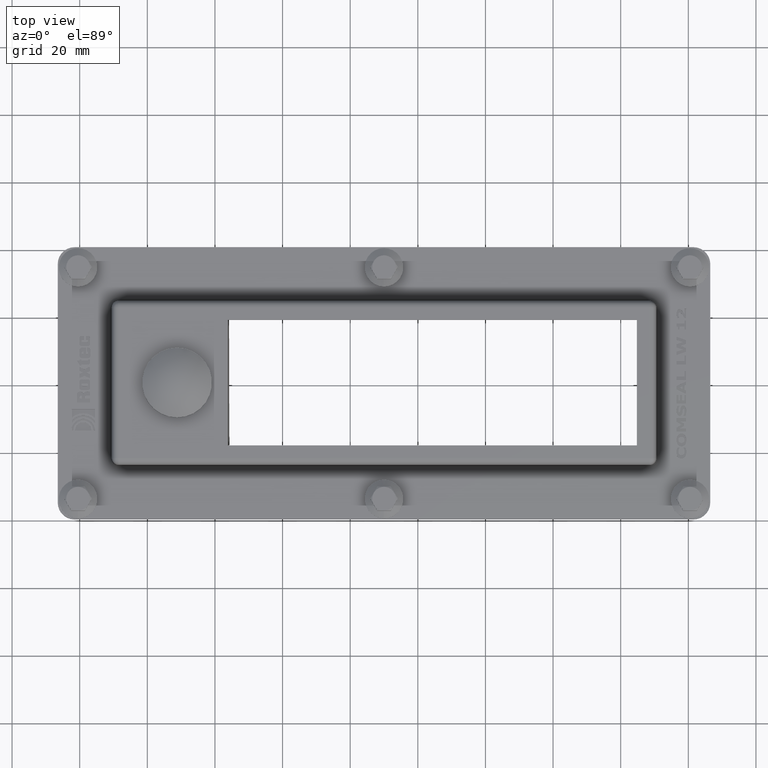
[diagram: clean part render]
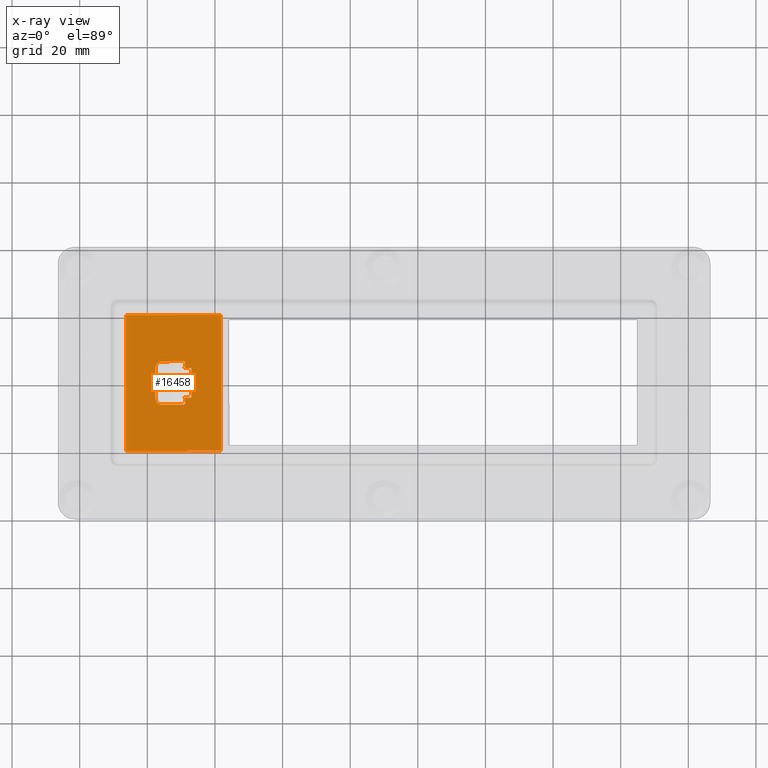
[diagram: x-ray — body ghosted, one internal face saturated and labeled with its STEP entity id]
A machine part, top view, then the same camera in x-ray: the body is ghosted and one INTERNAL B-rep face — a face not visible from any outside direction — is saturated and labeled: STEP entity #16458.
In plain terms, the highlighted planar face has unit normal (0.226, 0, -0.9741).
Its self-contained STEP definition (entity closure, byte-faithful):
#720=CARTESIAN_POINT('',(-78.16897413582565,20.079407966922172,19.547910793203318));
#721=VERTEX_POINT('',#720);
#728=CARTESIAN_POINT('',(-106.38655071872007,20.136550718720137,12.999999999999998));
#729=VERTEX_POINT('',#728);
#730=CARTESIAN_POINT('',(-78.168974135825636,20.079407966922172,19.547910793203318));
#731=DIRECTION('',(-0.97411505723463,0.001972657530483,-0.226044163585441));
#732=VECTOR('',#731,28.967395969630118);
#733=LINE('',#730,#732);
#734=EDGE_CURVE('',#721,#729,#733,.T.);
#16297=CARTESIAN_POINT('',(-78.16897413582565,-20.079407966922169,19.547910793203318));
#16298=VERTEX_POINT('',#16297);
#16305=CARTESIAN_POINT('',(-78.16897413582565,-20.079407966922165,19.547910793203318));
#16306=DIRECTION('',(0.0,1.0,0.0));
#16307=VECTOR('',#16306,40.158815933844338);
#16308=LINE('',#16305,#16307);
#16309=EDGE_CURVE('',#16298,#721,#16308,.T.);
#16315=CARTESIAN_POINT('',(-106.38655071872007,1.327558E-014,12.999999999999998));
#16316=DIRECTION('',(0.226044603398337,0.0,-0.974116952564983));
#16317=DIRECTION('',(-0.974116952564983,0.0,-0.226044603398337));
#16318=AXIS2_PLACEMENT_3D('',#16315,#16316,#16317);
#16319=PLANE('',#16318);
#16320=ORIENTED_EDGE('',*,*,#16309,.F.);
#16321=CARTESIAN_POINT('',(-106.38655071872007,-20.136550718720137,12.999999999999998));
#16322=VERTEX_POINT('',#16321);
#16323=CARTESIAN_POINT('',(-106.38655071872007,-20.136550718720137,13.0));
#16324=DIRECTION('',(0.97411505723463,0.001972657530483,0.226044163585441));
#16325=VECTOR('',#16324,28.967395969630136);
#16326=LINE('',#16323,#16325);
#16327=EDGE_CURVE('',#16322,#16298,#16326,.T.);
#16328=ORIENTED_EDGE('',*,*,#16327,.F.);
#16329=CARTESIAN_POINT('',(-106.38655071872009,20.136550718720141,12.999999999999998));
#16330=DIRECTION('',(0.0,-1.0,0.0));
#16331=VECTOR('',#16330,40.273101437440275);
#16332=LINE('',#16329,#16331);
#16333=EDGE_CURVE('',#729,#16322,#16332,.T.);
#16334=ORIENTED_EDGE('',*,*,#16333,.F.);
#16335=ORIENTED_EDGE('',*,*,#734,.F.);
#16336=EDGE_LOOP('',(#16320,#16328,#16334,#16335));
#16337=FACE_OUTER_BOUND('',#16336,.T.);
#16338=CARTESIAN_POINT('',(-86.920740230695685,4.339122054348793,17.517056601885933));
#16339=VERTEX_POINT('',#16338);
#16340=CARTESIAN_POINT('',(-89.320740230695677,4.343982237997529,16.960134718196802));
#16341=VERTEX_POINT('',#16340);
#16342=CARTESIAN_POINT('',(-86.920740230695685,4.339122054348795,17.517056601885926));
#16343=DIRECTION('',(-0.97411505723463,0.001972657530483,-0.226044163585441));
#16344=VECTOR('',#16343,2.463774666221915);
#16345=LINE('',#16342,#16344);
#16346=EDGE_CURVE('',#16339,#16341,#16345,.T.);
#16347=ORIENTED_EDGE('',*,*,#16346,.T.);
#16348=CARTESIAN_POINT('',(-88.820740230695662,4.842988738930244,17.076160110632038));
#16349=VERTEX_POINT('',#16348);
#16350=CARTESIAN_POINT('',(-89.320740230695677,4.844001277190397,16.960134718196802));
#16351=DIRECTION('',(-0.226044603398337,-1.734723E-018,0.974116952564983));
#16352=DIRECTION('',(0.973391808225825,-0.038578100404249,0.225876333085291));
#16353=AXIS2_PLACEMENT_3D('',#16350,#16351,#16352);
#16354=ELLIPSE('',#16353,0.513304935178728,0.5);
#16355=EDGE_CURVE('',#16349,#16341,#16354,.F.);
#16356=ORIENTED_EDGE('',*,*,#16355,.F.);
#16357=CARTESIAN_POINT('',(-88.820740230695662,5.915444384361985,17.076160110632038));
#16358=VERTEX_POINT('',#16357);
#16359=CARTESIAN_POINT('',(-88.820740230695662,4.842988738930244,17.076160110632038));
#16360=DIRECTION('',(0.0,1.0,0.0));
#16361=VECTOR('',#16360,1.072455645431741);
#16362=LINE('',#16359,#16361);
#16363=EDGE_CURVE('',#16349,#16358,#16362,.T.);
#16364=ORIENTED_EDGE('',*,*,#16363,.T.);
#16365=CARTESIAN_POINT('',(-89.320740230695677,6.41349531762566,16.960134718196798));
#16366=VERTEX_POINT('',#16365);
#16367=CARTESIAN_POINT('',(-89.320740230695677,5.913419153603706,16.960134718196798));
#16368=DIRECTION('',(-0.226044603398337,0.0,0.974116952564982));
#16369=DIRECTION('',(0.971225614880206,0.076990360276182,0.225373666219259));
#16370=AXIS2_PLACEMENT_3D('',#16367,#16368,#16369);
#16371=ELLIPSE('',#16370,0.513363577859091,0.5);
#16372=EDGE_CURVE('',#16366,#16358,#16371,.F.);
#16373=ORIENTED_EDGE('',*,*,#16372,.F.);
#16374=CARTESIAN_POINT('',(-95.609069522209836,6.38802468182694,15.500922970576955));
#16375=VERTEX_POINT('',#16374);
#16376=CARTESIAN_POINT('',(-89.320740230695677,6.41349531762566,16.960134718196798));
#16377=DIRECTION('',(-0.974109370155081,-0.003945592516732,-0.226042843894168));
#16378=VECTOR('',#16377,6.455465355510391);
#16379=LINE('',#16376,#16378);
#16380=EDGE_CURVE('',#16366,#16375,#16379,.T.);
#16381=ORIENTED_EDGE('',*,*,#16380,.T.);
#16382=CARTESIAN_POINT('',(-97.600697898429459,4.380262277420995,15.038764042704889));
#16383=VERTEX_POINT('',#16382);
#16384=CARTESIAN_POINT('',(-95.608462714286944,4.387722483591263,15.50106378083173));
#16385=DIRECTION('',(-0.226044603398337,3.469447E-018,0.974116952564982));
#16386=DIRECTION('',(-0.970738670426935,-0.083210961532665,-0.225260670376689));
#16387=AXIS2_PLACEMENT_3D('',#16384,#16385,#16386);
#16388=ELLIPSE('',#16387,2.045481869253651,2.0);
#16389=EDGE_CURVE('',#16383,#16375,#16388,.F.);
#16390=ORIENTED_EDGE('',*,*,#16389,.F.);
#16391=CARTESIAN_POINT('',(-97.600697898429459,-4.380262277420997,15.038764042704889));
#16392=VERTEX_POINT('',#16391);
#16393=CARTESIAN_POINT('',(-97.600697898429459,4.380262277420994,15.038764042704889));
#16394=DIRECTION('',(0.0,-1.0,0.0));
#16395=VECTOR('',#16394,8.760524554841991);
#16396=LINE('',#16393,#16395);
#16397=EDGE_CURVE('',#16383,#16392,#16396,.T.);
#16398=ORIENTED_EDGE('',*,*,#16397,.T.);
#16399=CARTESIAN_POINT('',(-95.609069522209836,-6.388024681826941,15.500922970576955));
#16400=VERTEX_POINT('',#16399);
#16401=CARTESIAN_POINT('',(-95.608462714286944,-4.387722483591265,15.501063780831728));
#16402=DIRECTION('',(-0.226044603398337,-3.469447E-018,0.974116952564982));
#16403=DIRECTION('',(-0.970738670426935,0.083210961532665,-0.225260670376689));
#16404=AXIS2_PLACEMENT_3D('',#16401,#16402,#16403);
#16405=ELLIPSE('',#16404,2.045481869253651,2.0);
#16406=EDGE_CURVE('',#16400,#16392,#16405,.F.);
#16407=ORIENTED_EDGE('',*,*,#16406,.F.);
#16408=CARTESIAN_POINT('',(-89.320740230695677,-6.413495317625664,16.960134718196798));
#16409=VERTEX_POINT('',#16408);
#16410=CARTESIAN_POINT('',(-95.60906952220985,-6.38802468182694,15.500922970576955));
#16411=DIRECTION('',(0.974109370155081,-0.003945592516732,0.226042843894168));
#16412=VECTOR('',#16411,6.455465355510392);
#16413=LINE('',#16410,#16412);
#16414=EDGE_CURVE('',#16400,#16409,#16413,.T.);
#16415=ORIENTED_EDGE('',*,*,#16414,.T.);
#16416=CARTESIAN_POINT('',(-88.820740230695662,-5.91544438436199,17.076160110632038));
#16417=VERTEX_POINT('',#16416);
#16418=CARTESIAN_POINT('',(-89.320740230695677,-5.91341915360371,16.960134718196802));
#16419=DIRECTION('',(-0.226044603398337,0.0,0.974116952564983));
#16420=DIRECTION('',(0.971225614880206,-0.076990360276179,0.225373666219259));
#16421=AXIS2_PLACEMENT_3D('',#16418,#16419,#16420);
#16422=ELLIPSE('',#16421,0.513363577859091,0.5);
#16423=EDGE_CURVE('',#16417,#16409,#16422,.F.);
#16424=ORIENTED_EDGE('',*,*,#16423,.F.);
#16425=CARTESIAN_POINT('',(-88.820740230695662,-4.842988738930249,17.076160110632038));
#16426=VERTEX_POINT('',#16425);
#16427=CARTESIAN_POINT('',(-88.820740230695662,-5.915444384361991,17.076160110632038));
#16428=DIRECTION('',(0.0,1.0,0.0));
#16429=VECTOR('',#16428,1.072455645431742);
#16430=LINE('',#16427,#16429);
#16431=EDGE_CURVE('',#16417,#16426,#16430,.T.);
#16432=ORIENTED_EDGE('',*,*,#16431,.T.);
#16433=CARTESIAN_POINT('',(-89.320740230695677,-4.343982237997533,16.960134718196802));
#16434=VERTEX_POINT('',#16433);
#16435=CARTESIAN_POINT('',(-89.320740230695677,-4.844001277190402,16.960134718196802));
#16436=DIRECTION('',(-0.226044603398337,1.734723E-018,0.974116952564983));
#16437=DIRECTION('',(0.973391808225825,0.038578100404249,0.225876333085291));
#16438=AXIS2_PLACEMENT_3D('',#16435,#16436,#16437);
#16439=ELLIPSE('',#16438,0.513304935178728,0.5);
#16440=EDGE_CURVE('',#16434,#16426,#16439,.F.);
#16441=ORIENTED_EDGE('',*,*,#16440,.F.);
#16442=CARTESIAN_POINT('',(-86.920740230695671,-4.339122054348799,17.517056601885937));
#16443=VERTEX_POINT('',#16442);
#16444=CARTESIAN_POINT('',(-89.320740230695691,-4.343982237997534,16.960134718196802));
#16445=DIRECTION('',(0.97411505723463,0.001972657530483,0.226044163585441));
#16446=VECTOR('',#16445,2.46377466622193);
#16447=LINE('',#16444,#16446);
#16448=EDGE_CURVE('',#16434,#16443,#16447,.T.);
#16449=ORIENTED_EDGE('',*,*,#16448,.T.);
#16450=CARTESIAN_POINT('',(-86.920740230695671,-4.339122054348799,17.517056601885937));
#16451=DIRECTION('',(0.0,1.0,0.0));
#16452=VECTOR('',#16451,8.678244108697591);
#16453=LINE('',#16450,#16452);
#16454=EDGE_CURVE('',#16443,#16339,#16453,.T.);
#16455=ORIENTED_EDGE('',*,*,#16454,.T.);
#16456=EDGE_LOOP('',(#16347,#16356,#16364,#16373,#16381,#16390,#16398,#16407,#16415,#16424,#16432,#16441,#16449,#16455));
#16457=FACE_BOUND('',#16456,.T.);
#16458=ADVANCED_FACE('',(#16337,#16457),#16319,.T.);